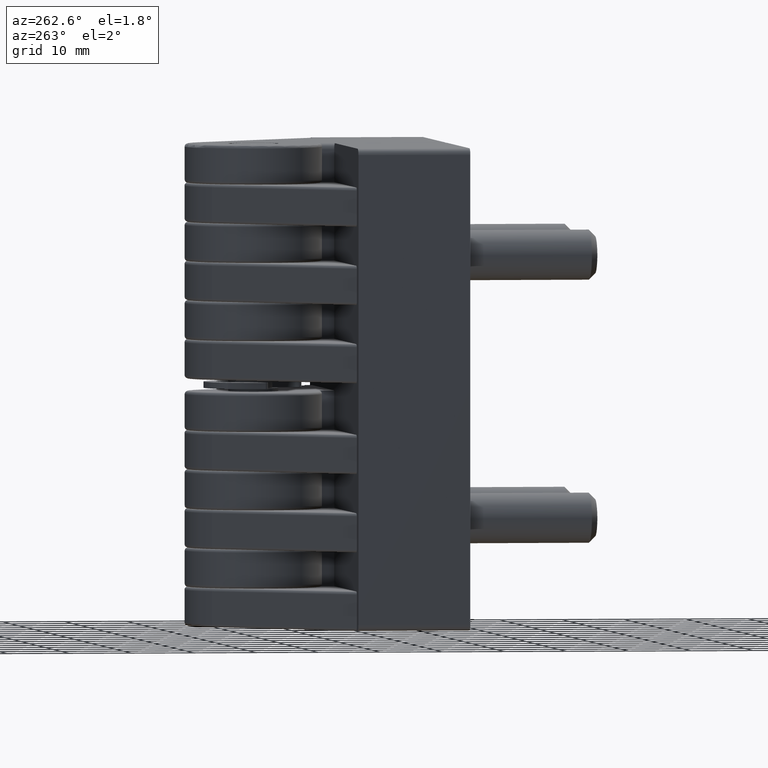
[diagram: clean part render]
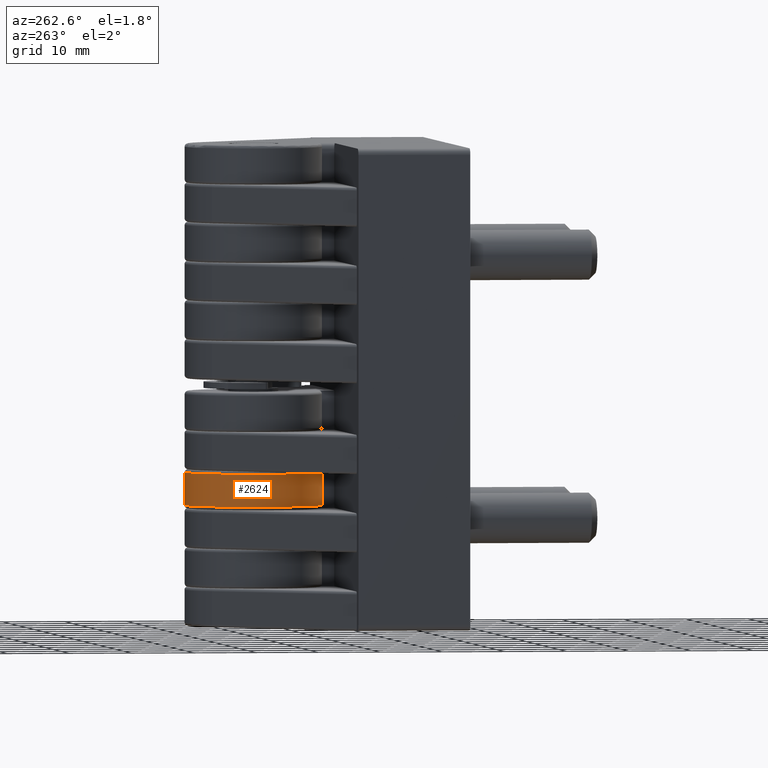
[diagram: same view with one face highlighted and labeled with its STEP entity id]
A machine part, auxiliary view. The second image highlights one B-rep face of the part: STEP entity #2624.
In plain terms, the highlighted cylindrical surface (partial cylindrical patch) has radius 11 mm, axis along (0, 0, -1).
Its self-contained STEP definition (entity closure, byte-faithful):
#48=LINE('',#4018,#291);
#49=LINE('',#4019,#292);
#291=VECTOR('',#3190,5.25);
#292=VECTOR('',#3191,5.25);
#654=CYLINDRICAL_SURFACE('',#2826,11.);
#758=FACE_OUTER_BOUND('',#923,.T.);
#923=EDGE_LOOP('',(#1898,#1899,#1900,#1901));
#1104=CIRCLE('',#2789,11.);
#1132=CIRCLE('',#2827,11.);
#1224=VERTEX_POINT('',#3936);
#1225=VERTEX_POINT('',#3937);
#1255=VERTEX_POINT('',#4015);
#1256=VERTEX_POINT('',#4016);
#1480=EDGE_CURVE('',#1224,#1225,#1104,.T.);
#1513=EDGE_CURVE('',#1255,#1256,#1132,.T.);
#1514=EDGE_CURVE('',#1256,#1224,#48,.T.);
#1515=EDGE_CURVE('',#1255,#1225,#49,.T.);
#1898=ORIENTED_EDGE('',*,*,#1513,.T.);
#1899=ORIENTED_EDGE('',*,*,#1514,.T.);
#1900=ORIENTED_EDGE('',*,*,#1480,.T.);
#1901=ORIENTED_EDGE('',*,*,#1515,.F.);
#2624=ADVANCED_FACE('',(#758),#654,.T.);
#2789=AXIS2_PLACEMENT_3D('',#3938,#3108,#3109);
#2826=AXIS2_PLACEMENT_3D('',#4014,#3186,#3187);
#2827=AXIS2_PLACEMENT_3D('',#4017,#3188,#3189);
#3108=DIRECTION('center_axis',(0.,0.,1.));
#3109=DIRECTION('ref_axis',(-1.,0.,0.));
#3186=DIRECTION('center_axis',(0.,0.,-1.));
#3187=DIRECTION('ref_axis',(-1.,0.,0.));
#3188=DIRECTION('center_axis',(0.,0.,-1.));
#3189=DIRECTION('ref_axis',(1.,0.,0.));
#3190=DIRECTION('',(0.,0.,-1.));
#3191=DIRECTION('',(0.,0.,-1.));
#3936=CARTESIAN_POINT('',(7.88326407044156,7.6716456901818,-19.25));
#3937=CARTESIAN_POINT('',(0.,-11.,-19.25));
#3938=CARTESIAN_POINT('Origin',(0.,0.,-19.25));
#4014=CARTESIAN_POINT('Origin',(0.,0.,38.5));
#4015=CARTESIAN_POINT('',(0.,-11.,-14.));
#4016=CARTESIAN_POINT('',(7.88326407044156,7.6716456901818,-14.));
#4017=CARTESIAN_POINT('Origin',(0.,0.,-14.));
#4018=CARTESIAN_POINT('',(7.88326407044156,7.6716456901818,38.5));
#4019=CARTESIAN_POINT('',(0.,-11.,38.5));